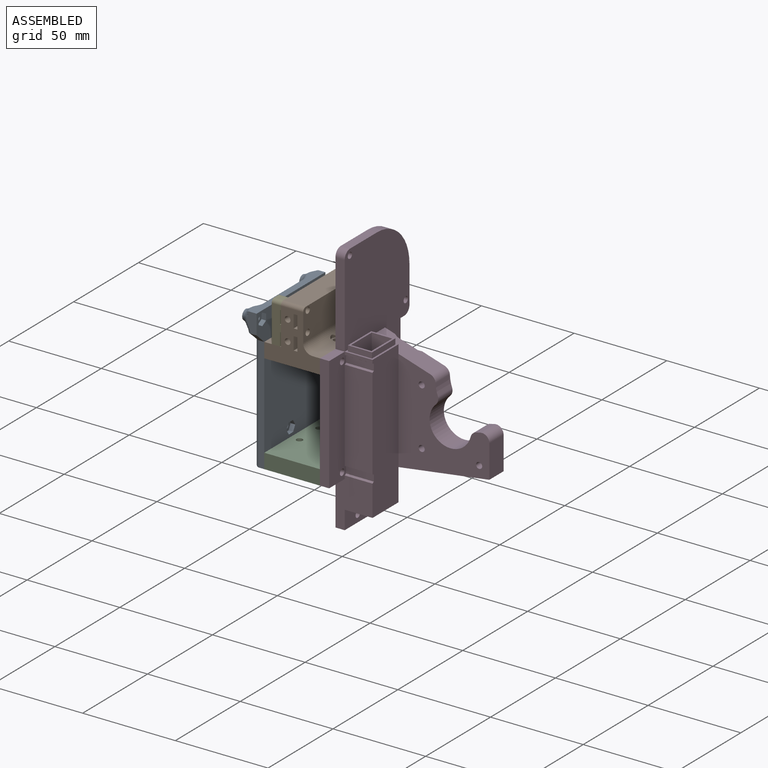
[diagram: assembled view]
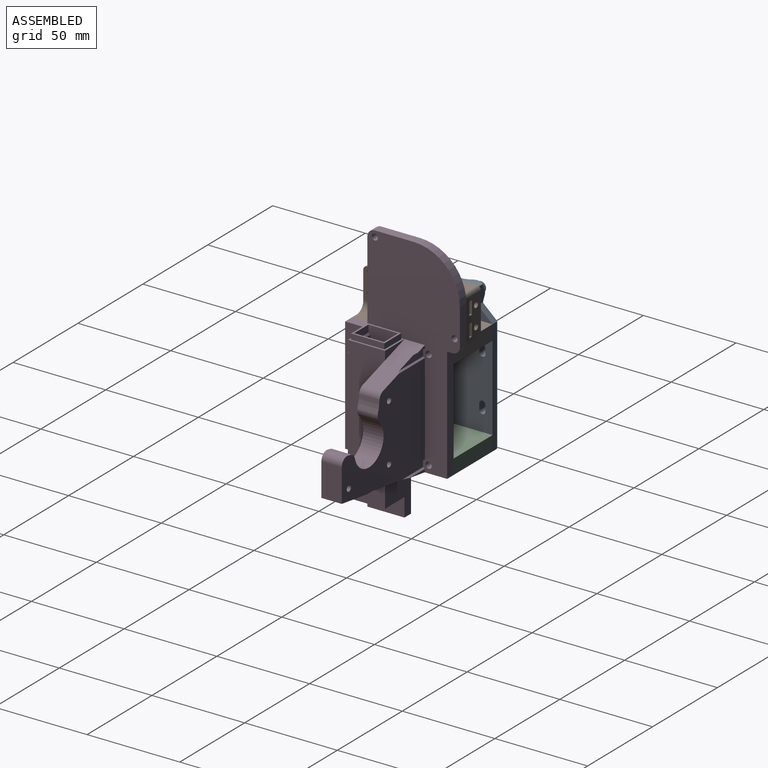
[diagram: assembled view, second angle]
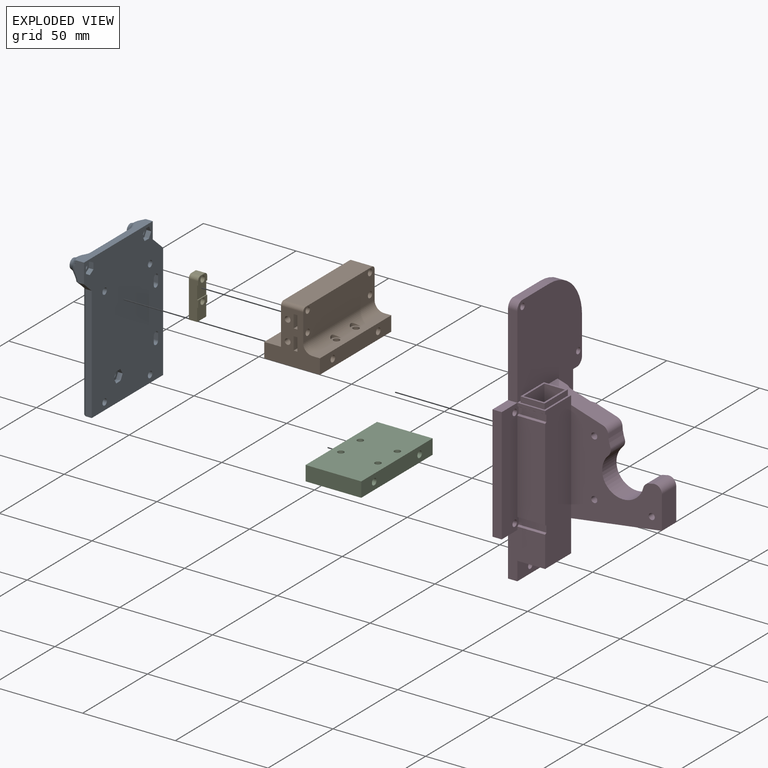
[diagram: exploded view]
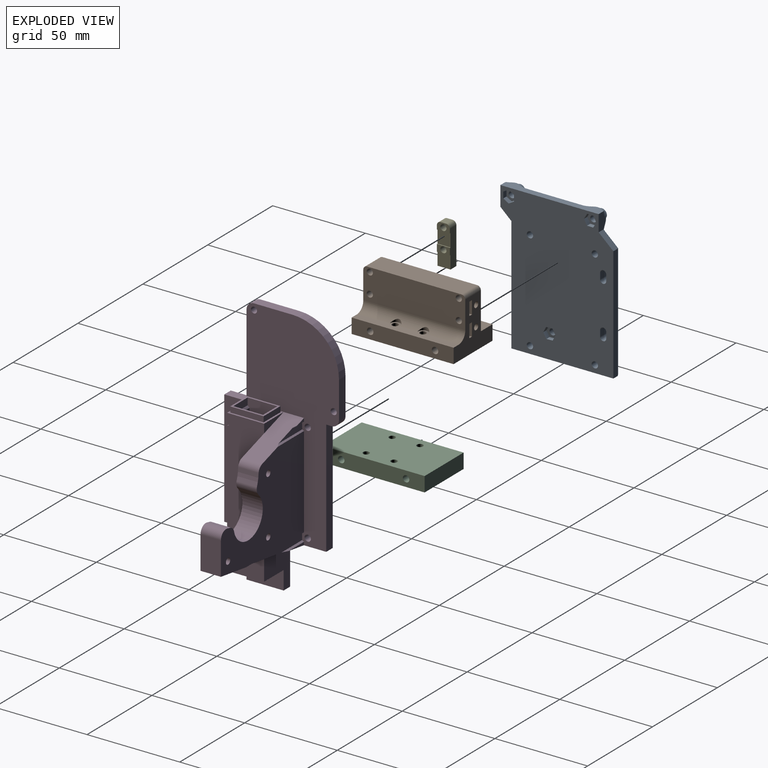
[diagram: exploded view, second angle]
ASSEMBLY  parts=5 mates=4
PART A: 69 faces, bbox 10x68.6x85.7 mm
  f0: plane 78.05x60.95mm, normal (1,0,0), area 4110.5mm2, adj f4,f6,f7,f8,f9,f10,f11,f12
  f1: cylinder r=1.7mm len=3.41mm, axis (-1,0,0), area 26.8mm2, adj f30,f62
  f2: cylinder r=1.71mm len=3.41mm, axis (-1,0,0), area 26.8mm2, adj f27,f55
  f3: cylinder r=1.7mm len=3.4mm, axis (-1,0,0), area 26.7mm2, adj f25,f48
  f4: plane 10.6x5.27mm, normal (0,-1,0), area 45.1mm2, adj f0,f23,f24,f42,f44
  f5: plane 74.05x54.39mm, normal (-1,0,0), area 3316.8mm2, adj f9,f10,f11,f12,f13,f14,f15,f16
  f6: plane 62.05x3mm, normal (0,1,0), area 186.1mm2, adj f0,f8,f21,f39
  f7: plane 62.05x3mm, normal (0,-1,0), area 186.1mm2, adj f0,f8,f24,f36
  f8: plane 55x3mm, normal (0,0,-1), area 165mm2, adj f0,f6,f7,f37
  f9: cylinder r=1.7mm len=5mm, axis (-1,0,0), area 53.4mm2, adj f0,f5
  f10: cylinder r=1.7mm len=5mm, axis (-1,0,0), area 53.4mm2, adj f0,f5
  f11: cylinder r=1.7mm len=5mm, axis (-1,0,0), area 53.4mm2, adj f0,f5
  f12: cylinder r=1.7mm len=5mm, axis (-1,0,0), area 53.4mm2, adj f0,f5
  f13: plane 5x3.3mm, normal (0,1,0), area 16.5mm2, adj f0,f5,f14,f16
  f14: cylinder r=1.65mm len=5mm, axis (-1,0,0), area 25.9mm2, adj f0,f5,f13,f15
  f15: plane 5x3.3mm, normal (0,-1,0), area 16.5mm2, adj f0,f5,f14,f16
  f16: cylinder r=1.65mm len=5mm, axis (-1,0,0), area 25.9mm2, adj f0,f5,f13,f15
  f17: cylinder r=1.65mm len=5mm, axis (-1,0,0), area 25.9mm2, adj f0,f5,f18,f20
  f18: plane 5x3.3mm, normal (0,-1,0), area 16.5mm2, adj f0,f5,f17,f19
  f19: cylinder r=1.65mm len=5mm, axis (-1,0,0), area 25.9mm2, adj f0,f5,f18,f20
  f20: plane 5x3.3mm, normal (0,1,0), area 16.5mm2, adj f0,f5,f17,f19
  f21: plane 7.95x7.14mm, normal (0,0.67,0.74), area 32.1mm2, adj f0,f6,f22,f41,f43
  f22: plane 8.93x5.16mm, normal (0,1,0), area 38.9mm2, adj f0,f21,f23,f43,f45,f47
  f23: plane 53.01x5.28mm, normal (0,0,1), area 185.8mm2, adj f0,f4,f22,f44,f46,f47
  f24: plane 5.95x5.41mm, normal (0,-0.67,-0.74), area 24.7mm2, adj f0,f4,f7,f38,f40,f42
  f25: cylinder r=1.7mm len=4mm, axis (1,0,0), area 42.7mm2, adj f3,f26
  f26: plane 5.4x5.4mm, normal (-1,0,0), area 13.8mm2, adj f25,f33
  f27: plane 3.41x3.41mm, normal (1,0,0), area 0.1mm2, adj f2,f28
  f28: cylinder r=1.7mm len=4mm, axis (1,0,0), area 42.7mm2, adj f27,f29
  f29: plane 5.4x5.4mm, normal (-1,0,0), area 13.8mm2, adj f28,f35
  f30: plane 3.41x3.41mm, normal (1,0,0), area 0mm2, adj f1,f31
  f31: cylinder r=1.7mm len=4mm, axis (1,0,0), area 42.7mm2, adj f30,f32
  f32: plane 5.4x5.4mm, normal (-1,0,0), area 13.8mm2, adj f31,f34
  f33: torus R=7.6mm, axis (-1,0,0), area 122.6mm2, adj f5,f26,f40,f42,f44
  f34: torus R=7.6mm, axis (-1,0,0), area 201.3mm2, adj f5,f32
  f35: torus R=7.6mm, axis (-1,0,0), area 122mm2, adj f5,f29,f43,f45,f47
  f36: cylinder r=2mm len=62.94mm, axis (0,0,1), area 193.2mm2, adj f5,f7,f37,f38
  f37: cylinder r=2mm len=55mm, axis (0,-1,0), area 166.5mm2, adj f5,f8,f36,f39
  f38: cylinder r=2mm len=4.74mm, axis (0,-0.74,0.67), area 13mm2, adj f5,f24,f36,f40
  f39: cylinder r=2mm len=62.05mm, axis (0,0,-1), area 190.4mm2, adj f5,f6,f37,f41
  f40: bspline ~5.24x4.57mm, area 10.9mm2, adj f24,f33,f38,f42
  f41: cylinder r=2mm len=8.61mm, axis (0,-0.74,0.67), area 29.3mm2, adj f5,f21,f39,f43
  f42: bspline ~13.3x3.63mm, area 22.5mm2, adj f4,f24,f33,f40,f44
  f43: bspline ~4.29x4mm, area 3mm2, adj f21,f22,f35,f41,f45
  f44: bspline ~14.95x3.63mm, area 26mm2, adj f4,f23,f33,f42,f46
  f45: bspline ~11.62x3.45mm, area 19.7mm2, adj f22,f35,f43,f47
  f46: cylinder r=2mm len=29.6mm, axis (0,-1,0), area 93mm2, adj f5,f23,f44,f47
  f47: bspline ~14.94x3.63mm, area 26.3mm2, adj f22,f23,f35,f45,f46
  f48: plane 6.7x5.8mm, normal (1,0,0), area 20mm2, adj f3,f49,f50,f51,f52,f53,f54
  f49: plane 2.9x2.5mm, normal (0,-0.5,0.87), area 8.4mm2, adj f0,f48,f50,f54
  f50: plane 3.35x2.5mm, normal (0,-1,0), area 8.4mm2, adj f0,f48,f49,f51
  f51: plane 2.9x2.5mm, normal (0,-0.5,-0.87), area 8.4mm2, adj f0,f48,f50,f52
  f52: plane 2.9x2.5mm, normal (0,0.5,-0.87), area 8.4mm2, adj f0,f48,f51,f53
  f53: plane 3.35x2.5mm, normal (0,1,0), area 8.4mm2, adj f0,f48,f52,f54
  f54: plane 2.9x2.5mm, normal (0,0.5,0.87), area 8.4mm2, adj f0,f48,f49,f53
  f55: plane 6.7x5.85mm, normal (1,0,0), area 20mm2, adj f2,f56,f57,f58,f59,f60,f61
  f56: plane 2.87x2.5mm, normal (0,-0.86,0.51), area 8.4mm2, adj f0,f55,f57,f61
  f57: plane 2.93x2.5mm, normal (0,-0.87,-0.49), area 8.4mm2, adj f0,f55,f56,f58
  f58: plane 3.35x2.5mm, normal (0,-0.02,-1), area 8.4mm2, adj f0,f55,f57,f59
  f59: plane 2.87x2.5mm, normal (0,0.86,-0.51), area 8.4mm2, adj f0,f55,f58,f60
  f60: plane 2.93x2.5mm, normal (0,0.87,0.49), area 8.4mm2, adj f0,f55,f59,f61
  f61: plane 3.35x2.5mm, normal (0,0.02,1), area 8.4mm2, adj f0,f55,f56,f60
  f62: plane 6.69x5.89mm, normal (1,0,0), area 20mm2, adj f1,f63,f64,f65,f66,f67,f68
  f63: plane 2.95x2.5mm, normal (0,-0.88,0.48), area 8.4mm2, adj f0,f62,f64,f68
  f64: plane 2.85x2.5mm, normal (0,-0.85,-0.52), area 8.4mm2, adj f0,f62,f63,f65
  f65: plane 3.35x2.5mm, normal (0,0.03,-1), area 8.4mm2, adj f0,f62,f64,f66
  f66: plane 2.95x2.5mm, normal (0,0.88,-0.48), area 8.4mm2, adj f0,f62,f65,f67
  f67: plane 2.85x2.5mm, normal (0,0.85,0.52), area 8.4mm2, adj f0,f62,f66,f68
  f68: plane 3.35x2.5mm, normal (0,-0.03,1), area 8.4mm2, adj f0,f62,f63,f67
PART B: 124 faces, bbox 30x55x30 mm
  f0: cylinder r=1.65mm len=8mm, axis (0,0,1), area 82.9mm2, adj f19,f20
  f1: cylinder r=1.65mm len=8mm, axis (0,0,1), area 82.9mm2, adj f19,f20
  f2: cylinder r=5mm len=55mm, axis (0,1,0), area 394.1mm2, adj f14,f15,f19,f25,f122,f123
  f3: plane 55x22mm, normal (-1,0,0), area 516.3mm2, adj f5,f7,f9,f11,f14,f15,f16,f26
  f4: cylinder r=1.55mm len=4.6mm, axis (0,-1,0), area 44.8mm2, adj f14,f55
  f5: plane 7x6.85mm, normal (0,1,0), area 21.8mm2, adj f3,f16,f32,f33,f56,f57,f58,f59
  f6: cylinder r=1.55mm len=4.6mm, axis (0,-1,0), area 44.8mm2, adj f14,f48
  f7: plane 7x6.85mm, normal (0,1,0), area 21.8mm2, adj f3,f27,f29,f30,f49,f50,f51,f52
  f8: cylinder r=1.55mm len=4.6mm, axis (0,-1,0), area 44.8mm2, adj f15,f41
  f9: plane 7x6.85mm, normal (0,-1,0), area 21.8mm2, adj f3,f13,f16,f32,f42,f43,f44,f45
  f10: cylinder r=1.55mm len=4.6mm, axis (0,-1,0), area 44.8mm2, adj f15,f34
  f11: plane 7x6.85mm, normal (0,-1,0), area 18.8mm2, adj f3,f12,f27,f29,f35,f36,f37,f38
  f12: plane 7x7mm, normal (1,0,0), area 49mm2, adj f11,f15,f27,f29
  f13: plane 7x7mm, normal (1,0,0), area 49mm2, adj f9,f15,f16,f32
  f14: plane 30x28mm, normal (0,-1,0), area 442.3mm2, adj f2,f3,f4,f6,f16,f17,f18,f19
  f15: plane 30x28mm, normal (0,1,0), area 442.3mm2, adj f2,f3,f8,f10,f12,f13,f16,f17
  f16: plane 55x17.85mm, normal (0,0,1), area 871.7mm2, adj f3,f5,f9,f13,f14,f15,f18,f21
  f17: plane 55x8mm, normal (1,0,0), area 420.8mm2, adj f14,f15,f19,f20,f23,f24
  f18: plane 55x8mm, normal (-1,0,0), area 420.8mm2, adj f14,f15,f16,f20,f23,f24
  f19: plane 55x7.75mm, normal (0,0,1), area 237.4mm2, adj f0,f1,f2,f14,f15,f17,f122,f123
  f20: plane 55x30mm, normal (0,0,-1), area 1615.8mm2, adj f0,f1,f14,f15,f17,f18,f21,f22
  f21: cylinder r=1.65mm len=8mm, axis (0,0,1), area 82.9mm2, adj f16,f20
  f22: cylinder r=1.65mm len=8mm, axis (0,0,1), area 82.9mm2, adj f16,f20
  f23: cylinder r=1.75mm len=30mm, axis (1,0,0), area 329.9mm2, adj f17,f18
  f24: cylinder r=1.75mm len=30mm, axis (1,0,0), area 329.9mm2, adj f17,f18
  f25: plane 55x17mm, normal (1,0,0), area 899.1mm2, adj f2,f14,f15,f26,f116,f117,f118,f119
  f26: plane 51x12mm, normal (0,0,1), area 612mm2, adj f3,f25,f120,f121
  f27: plane 55x8.85mm, normal (0,0,1), area 390.9mm2, adj f3,f7,f11,f12,f14,f15,f28,f30
  f28: plane 55x7mm, normal (-1,0,0), area 385mm2, adj f14,f15,f27,f29
  f29: plane 55x8.85mm, normal (0,0,-1), area 390.9mm2, adj f3,f7,f11,f12,f14,f15,f28,f30
  f30: plane 7x7mm, normal (1,0,0), area 49mm2, adj f7,f14,f27,f29
  f31: plane 55x7mm, normal (-1,0,0), area 385mm2, adj f14,f15,f16,f32
  f32: plane 55x8.85mm, normal (0,0,-1), area 390.9mm2, adj f3,f5,f9,f13,f14,f15,f31,f33
  f33: plane 7x7mm, normal (1,0,0), area 49mm2, adj f5,f14,f16,f32
  f34: plane 6.7x5.83mm, normal (0,-1,0), area 21.6mm2, adj f10,f35,f36,f37,f38,f39,f40
  f35: plane 2.89x2.4mm, normal (-0.51,0,0.86), area 8mm2, adj f11,f34,f36,f40
  f36: plane 3.35x2.4mm, normal (-1,0,-0.01), area 8mm2, adj f11,f34,f35,f37
  f37: plane 2.91x2.4mm, normal (-0.49,0,-0.87), area 8mm2, adj f11,f34,f36,f38
  f38: plane 2.89x2.4mm, normal (0.51,0,-0.86), area 8mm2, adj f11,f34,f37,f39
  f39: plane 3.35x2.4mm, normal (1,0,0.01), area 8mm2, adj f11,f34,f38,f40
  f40: plane 2.91x2.4mm, normal (0.49,0,0.87), area 8mm2, adj f11,f34,f35,f39
  f41: plane 6.35x5.56mm, normal (0,-1,0), area 18.6mm2, adj f8,f42,f43,f44,f45,f46,f47
  f42: plane 2.78x2.4mm, normal (-0.48,0,0.88), area 7.6mm2, adj f9,f41,f43,f47
  f43: plane 3.18x2.4mm, normal (-1,0,0.02), area 7.6mm2, adj f9,f41,f42,f44
  f44: plane 2.72x2.4mm, normal (-0.52,0,-0.86), area 7.6mm2, adj f9,f41,f43,f45
  f45: plane 2.78x2.4mm, normal (0.48,0,-0.88), area 7.6mm2, adj f9,f41,f44,f46
  f46: plane 3.18x2.4mm, normal (1,0,-0.02), area 7.6mm2, adj f9,f41,f45,f47
  f47: plane 2.72x2.4mm, normal (0.52,0,0.86), area 7.6mm2, adj f9,f41,f42,f46
  f48: plane 6.35x5.53mm, normal (0,1,0), area 18.6mm2, adj f6,f49,f50,f51,f52,f53,f54
  f49: plane 2.76x2.4mm, normal (0.49,0,0.87), area 7.6mm2, adj f7,f48,f50,f54
  f50: plane 3.18x2.4mm, normal (1,0,0.01), area 7.6mm2, adj f7,f48,f49,f51
  f51: plane 2.74x2.4mm, normal (0.51,0,-0.86), area 7.6mm2, adj f7,f48,f50,f52
  f52: plane 2.76x2.4mm, normal (-0.49,0,-0.87), area 7.6mm2, adj f7,f48,f51,f53
  f53: plane 3.18x2.4mm, normal (-1,0,-0.01), area 7.6mm2, adj f7,f48,f52,f54
  f54: plane 2.74x2.4mm, normal (-0.51,0,0.86), area 7.6mm2, adj f7,f48,f49,f53
  f55: plane 6.35x5.5mm, normal (0,1,0), area 18.6mm2, adj f4,f56,f57,f58,f59,f60,f61
  f56: plane 3.18x2.4mm, normal (1,0,0), area 7.6mm2, adj f5,f55,f57,f61
  f57: plane 2.75x2.4mm, normal (0.5,0,-0.87), area 7.6mm2, adj f5,f55,f56,f58
  f58: plane 2.75x2.4mm, normal (-0.5,0,-0.87), area 7.6mm2, adj f5,f55,f57,f59
  f59: plane 3.18x2.4mm, normal (-1,0,0), area 7.6mm2, adj f5,f55,f58,f60
  f60: plane 2.75x2.4mm, normal (-0.5,0,0.87), area 7.6mm2, adj f5,f55,f59,f61
  f61: plane 2.75x2.4mm, normal (0.5,0,0.87), area 7.6mm2, adj f5,f55,f56,f60
  f62: plane 1x0.5mm, normal (0,0,-1), area 0.5mm2, adj f3,f63,f65,f66
  f63: plane 7.01x0.5mm, normal (0,-1,0), area 3.5mm2, adj f3,f62,f64,f66
  f64: plane 1x0.5mm, normal (0,0,1), area 0.5mm2, adj f3,f63,f65,f66
  f65: plane 7.01x0.5mm, normal (0,1,0), area 3.5mm2, adj f3,f62,f64,f66
  f66: plane 7.01x1mm, normal (-1,0,0), area 7mm2, adj f62,f63,f64,f65
  f67: plane 6.94x0.5mm, normal (0,1,0), area 3.5mm2, adj f3,f16,f68,f70
  f68: plane 1x0.5mm, normal (0,0,-1), area 0.5mm2, adj f3,f67,f69,f70
  f69: plane 6.94x0.5mm, normal (0,-1,0), area 3.5mm2, adj f3,f16,f68,f70
  f70: plane 6.94x1mm, normal (-1,0,0), area 6.9mm2, adj f16,f67,f68,f69
  f71: plane 6.94x0.5mm, normal (0,1,0), area 3.5mm2, adj f3,f16,f72,f74
  f72: plane 1x0.5mm, normal (0,0,-1), area 0.5mm2, adj f3,f71,f73,f74
  f73: plane 6.94x0.5mm, normal (0,-1,0), area 3.5mm2, adj f3,f16,f72,f74
  f74: plane 6.94x1mm, normal (-1,0,0), area 6.9mm2, adj f16,f71,f72,f73
  f75: plane 6.96x0.5mm, normal (0,1,0), area 3.5mm2, adj f3,f16,f76,f78
  f76: plane 1x0.5mm, normal (0,0,-1), area 0.5mm2, adj f3,f75,f77,f78
  f77: plane 6.96x0.5mm, normal (0,-1,0), area 3.5mm2, adj f3,f16,f76,f78
  f78: plane 6.96x1mm, normal (-1,0,0), area 7mm2, adj f16,f75,f76,f77
  f79: plane 1x0.5mm, normal (0,0,-1), area 0.5mm2, adj f3,f80,f82,f83
  f80: plane 7.01x0.5mm, normal (0,-1,0), area 3.5mm2, adj f3,f79,f81,f83
  f81: plane 1x0.5mm, normal (0,0,1), area 0.5mm2, adj f3,f80,f82,f83
  f82: plane 7.01x0.5mm, normal (0,1,0), area 3.5mm2, adj f3,f79,f81,f83
  f83: plane 7.01x1mm, normal (-1,0,0), area 7mm2, adj f79,f80,f81,f82
  f84: plane 1x0.5mm, normal (0,0,-1), area 0.5mm2, adj f3,f85,f87,f88
  f85: plane 7.01x0.5mm, normal (0,-1,0), area 3.5mm2, adj f3,f84,f86,f88
  f86: plane 1x0.5mm, normal (0,0,1), area 0.5mm2, adj f3,f85,f87,f88
  f87: plane 7.01x0.5mm, normal (0,1,0), area 3.5mm2, adj f3,f84,f86,f88
  f88: plane 7.01x1mm, normal (-1,0,0), area 7mm2, adj f84,f85,f86,f87
  f89: plane 1x0.5mm, normal (0,0,-1), area 0.5mm2, adj f3,f90,f91,f92
  f90: plane 6.94x0.5mm, normal (0,-1,0), area 3.5mm2, adj f3,f16,f89,f92
  f91: plane 6.94x0.5mm, normal (0,1,0), area 3.5mm2, adj f3,f16,f89,f92
  f92: plane 6.94x1mm, normal (-1,0,0), area 6.9mm2, adj f16,f89,f90,f91
  f93: plane 1x0.5mm, normal (0,0,-1), area 0.5mm2, adj f3,f94,f95,f96
  f94: plane 6.94x0.5mm, normal (0,-1,0), area 3.5mm2, adj f3,f16,f93,f96
  f95: plane 6.94x0.5mm, normal (0,1,0), area 3.5mm2, adj f3,f16,f93,f96
  f96: plane 6.94x1mm, normal (-1,0,0), area 6.9mm2, adj f16,f93,f94,f95
  f97: plane 1x0.5mm, normal (0,0,-1), area 0.5mm2, adj f3,f98,f99,f100
  f98: plane 6.94x0.5mm, normal (0,-1,0), area 3.5mm2, adj f3,f16,f97,f100
  f99: plane 6.94x0.5mm, normal (0,1,0), area 3.5mm2, adj f3,f16,f97,f100
  f100: plane 6.94x1mm, normal (-1,0,0), area 6.9mm2, adj f16,f97,f98,f99
  f101: plane 7.04x0.5mm, normal (0,1,0), area 3.5mm2, adj f3,f102,f104,f105
  f102: plane 1x0.5mm, normal (0,0,-1), area 0.5mm2, adj f3,f101,f103,f105
  f103: plane 7.04x0.5mm, normal (0,-1,0), area 3.5mm2, adj f3,f102,f104,f105
  f104: plane 1x0.5mm, normal (0,0,1), area 0.5mm2, adj f3,f101,f103,f105
  f105: plane 7.04x1mm, normal (-1,0,0), area 7mm2, adj f101,f102,f103,f104
  f106: plane 7.04x0.5mm, normal (0,1,0), area 3.5mm2, adj f3,f107,f109,f110
  f107: plane 1x0.5mm, normal (0,0,-1), area 0.5mm2, adj f3,f106,f108,f110
  f108: plane 7.04x0.5mm, normal (0,-1,0), area 3.5mm2, adj f3,f107,f109,f110
  f109: plane 1x0.5mm, normal (0,0,1), area 0.5mm2, adj f3,f106,f108,f110
  f110: plane 7.04x1mm, normal (-1,0,0), area 7mm2, adj f106,f107,f108,f109
  f111: plane 7.04x0.5mm, normal (0,1,0), area 3.5mm2, adj f3,f112,f114,f115
  f112: plane 1x0.5mm, normal (0,0,-1), area 0.5mm2, adj f3,f111,f113,f115
  f113: plane 7.04x0.5mm, normal (0,-1,0), area 3.5mm2, adj f3,f112,f114,f115
  f114: plane 1x0.5mm, normal (0,0,1), area 0.5mm2, adj f3,f111,f113,f115
  f115: plane 7.04x1mm, normal (-1,0,0), area 7mm2, adj f111,f112,f113,f114
  f116: cylinder r=1.65mm len=12mm, axis (-1,0,0), area 124.4mm2, adj f3,f25
  f117: cylinder r=1.65mm len=12mm, axis (-1,0,0), area 124.4mm2, adj f3,f25
  f118: cylinder r=1.65mm len=12mm, axis (-1,0,0), area 124.4mm2, adj f3,f25
  f119: cylinder r=1.65mm len=12mm, axis (-1,0,0), area 124.4mm2, adj f3,f25
  f120: cylinder r=2mm len=12mm, axis (1,0,0), area 37.7mm2, adj f3,f15,f25,f26
  f121: cylinder r=2mm len=12mm, axis (-1,0,0), area 37.7mm2, adj f3,f14,f25,f26
  f122: cylinder r=2.75mm len=5.5mm, axis (0,0,-1), area 8.2mm2, adj f2,f19
  f123: cylinder r=2.75mm len=5.5mm, axis (0,0,-1), area 8.2mm2, adj f2,f19
PART C: 12 faces, bbox 30x55x8 mm
  f0: plane 30x8mm, normal (0,-1,0), area 240mm2, adj f1,f3,f4,f5
  f1: plane 55x8mm, normal (1,0,0), area 420.8mm2, adj f0,f2,f4,f5,f10,f11
  f2: plane 30x8mm, normal (0,1,0), area 240mm2, adj f1,f3,f4,f5
  f3: plane 55x8mm, normal (-1,0,0), area 420.8mm2, adj f0,f2,f4,f5,f10,f11
  f4: plane 55x30mm, normal (0,0,-1), area 1615.8mm2, adj f0,f1,f2,f3,f6,f7,f8,f9
  f5: plane 55x30mm, normal (0,0,1), area 1615.8mm2, adj f0,f1,f2,f3,f6,f7,f8,f9
  f6: cylinder r=1.65mm len=8mm, axis (0,0,-1), area 82.9mm2, adj f4,f5
  f7: cylinder r=1.65mm len=8mm, axis (0,0,-1), area 82.9mm2, adj f4,f5
  f8: cylinder r=1.65mm len=8mm, axis (0,0,-1), area 82.9mm2, adj f4,f5
  f9: cylinder r=1.65mm len=8mm, axis (0,0,-1), area 82.9mm2, adj f4,f5
  f10: cylinder r=1.75mm len=30mm, axis (1,0,0), area 329.9mm2, adj f1,f3
  f11: cylinder r=1.75mm len=30mm, axis (1,0,0), area 329.9mm2, adj f1,f3
PART D: 74 faces, bbox 69x61.9x135.7 mm
  f0: plane 11x3.77mm, normal (0,1,0), area 41.4mm2, adj f1,f14,f45,f73
  f1: plane 80.05x16mm, normal (-1,0,0), area 1219mm2, adj f0,f14,f43,f44,f46,f71,f72,f73
  f2: plane 49.42x15mm, normal (0,-1,0), area 741.3mm2, adj f5,f17,f65,f68
  f3: plane 15x1.69mm, normal (0,-1,0), area 25.4mm2, adj f5,f11,f17,f69
  f4: plane 26.7x20mm, normal (0,-1,0), area 375.5mm2, adj f5,f12,f17,f21,f46,f47,f48,f66
  f5: plane 77.05x20mm, normal (1,0,0), area 1532.9mm2, adj f2,f3,f4,f11,f18,f37,f38,f46
  f6: plane 5.43x1.7mm, normal (0,1,0), area 4.6mm2, adj f9,f16,f63
  f7: plane 64x49.42mm, normal (0,1,0), area 2120.7mm2, adj f9,f10,f16,f26,f27,f28,f29,f30
  f8: plane 11.68x1.64mm, normal (0,1,0), area 9.6mm2, adj f10,f16,f59
  f9: plane 32.21x11mm, normal (0.3,0,0.95), area 357.8mm2, adj f6,f7,f16,f18,f34,f37,f62,f63
  f10: plane 64x11mm, normal (0.14,0,-0.99), area 681.9mm2, adj f7,f8,f16,f18,f26,f38,f59,f60
  f11: plane 20x15mm, normal (0,0,1), area 66mm2, adj f3,f5,f16,f37,f39,f40,f41,f42
  f12: plane 12x5mm, normal (0,0,-1), area 60mm2, adj f4,f17,f20,f21
  f13: plane 23x5mm, normal (0,0,-1), area 115mm2, adj f16,f19,f21,f38
  f14: plane 18x13mm, normal (0,0,1), area 58mm2, adj f0,f1,f39,f40,f41,f42,f44,f45
  f15: plane 12x5mm, normal (0,0,1), area 60mm2, adj f17,f20,f21,f50
  f16: plane 110.74x49.88mm, normal (1,0,0), area 3005.4mm2, adj f6,f7,f8,f9,f10,f11,f13,f19
  f17: plane 62.05x13.03mm, normal (1,0,0), area 734.5mm2, adj f2,f3,f4,f12,f15,f20,f22,f24
  f18: plane 55.19x49mm, normal (0,-1,0), area 1444.9mm2, adj f5,f9,f10,f26,f27,f28,f29,f30
  f19: plane 62.05x5mm, normal (0,1,0), area 310.3mm2, adj f13,f16,f21,f51
  f20: plane 62.05x5mm, normal (0,-1,0), area 310.3mm2, adj f12,f15,f17,f21
  f21: plane 135.74x61.88mm, normal (-1,0,0), area 6138.2mm2, adj f4,f12,f13,f15,f19,f20,f22,f23
  f22: cylinder r=1.7mm len=5mm, axis (1,0,0), area 53.4mm2, adj f17,f21
  f23: cylinder r=1.7mm len=5mm, axis (1,0,0), area 53.4mm2, adj f16,f21
  f24: cylinder r=1.7mm len=5mm, axis (1,0,0), area 53.4mm2, adj f17,f21
  f25: cylinder r=1.7mm len=5mm, axis (1,0,0), area 53.4mm2, adj f16,f21
  f26: plane 17.8x11mm, normal (1,0,0), area 195.8mm2, adj f7,f10,f18,f33
  f27: cylinder r=1.65mm len=11mm, axis (0,1,0), area 114mm2, adj f7,f18
  f28: cylinder r=1.65mm len=11mm, axis (0,1,0), area 114mm2, adj f7,f18
  f29: cylinder r=1.65mm len=11mm, axis (0,1,0), area 114mm2, adj f7,f18
  f30: cylinder r=11.25mm len=22.17mm, axis (0,1,0), area 458.3mm2, adj f7,f18,f35,f36
  f31: cylinder r=19mm len=11mm, axis (0,-1,0), area 66mm2, adj f7,f18,f34,f36
  f32: cylinder r=19mm len=11mm, axis (0,-1,0), area 20.5mm2, adj f7,f18,f33,f35
  f33: cylinder r=4mm len=11mm, axis (0,-1,0), area 80.7mm2, adj f7,f18,f26,f32
  f34: cylinder r=4mm len=11mm, axis (0,-1,0), area 54mm2, adj f7,f9,f18,f31
  f35: cylinder r=4mm len=11mm, axis (0,1,0), area 51.1mm2, adj f7,f18,f30,f32
  f36: cylinder r=4mm len=11mm, axis (0,-1,0), area 51.1mm2, adj f7,f18,f30,f31
  f37: plane 15x4.7mm, normal (0,1,0), area 35.3mm2, adj f5,f9,f11
  f38: plane 27.16x20mm, normal (0,1,0), area 366.6mm2, adj f5,f10,f13,f16,f21,f46,f47,f48
  f39: plane 13x3mm, normal (0,-1,0), area 39mm2, adj f11,f14,f40,f42
  f40: plane 18x3mm, normal (1,0,0), area 54mm2, adj f11,f14,f39,f41
  f41: plane 13x3mm, normal (0,1,0), area 39mm2, adj f11,f14,f40,f42
  f42: plane 18x3mm, normal (-1,0,0), area 54mm2, adj f11,f14,f39,f41
  f43: plane 13.49x11mm, normal (0,1,0), area 148.3mm2, adj f1,f45,f46,f72
  f44: plane 80.05x11mm, normal (0,-1,0), area 880.6mm2, adj f1,f14,f45,f46
  f45: plane 80.05x16mm, normal (1,0,0), area 1219mm2, adj f0,f14,f43,f44,f46,f71,f72,f73
  f46: plane 20x15mm, normal (0,0,-1), area 124mm2, adj f1,f4,f5,f38,f43,f44,f45,f47
  f47: plane 20x10mm, normal (1,0,0), area 191.4mm2, adj f4,f38,f46,f48,f49
  f48: plane 20x5mm, normal (0,0,-1), area 100mm2, adj f4,f21,f38,f47
  f49: cylinder r=1.65mm len=5mm, axis (1,0,0), area 51.8mm2, adj f21,f47
  f50: plane 44.69x5mm, normal (0,-1,0), area 223.4mm2, adj f15,f16,f21,f58
  f51: plane 5x2.88mm, normal (0,0,-1), area 14.4mm2, adj f16,f19,f21,f57
  f52: plane 19.69x5mm, normal (0,1,0), area 98.4mm2, adj f16,f21,f56,f57
  f53: cylinder r=1.65mm len=5mm, axis (1,0,0), area 51.8mm2, adj f16,f21
  f54: plane 20.88x5mm, normal (0,0,1), area 104.4mm2, adj f16,f21,f56,f58
  f55: cylinder r=1.65mm len=5mm, axis (1,0,0), area 51.8mm2, adj f16,f21
  f56: cylinder r=25mm len=25mm, axis (-1,0,0), area 196.3mm2, adj f16,f21,f52,f54
  f57: cylinder r=4mm len=5mm, axis (1,0,0), area 31.4mm2, adj f16,f21,f51,f52
  f58: cylinder r=4mm len=5mm, axis (1,0,0), area 31.4mm2, adj f16,f21,f50,f54
  f59: plane 15.83x1.01mm, normal (0,0.5,0.86), area 16mm2, adj f8,f10,f16,f61
  f60: plane 44.53x1mm, normal (0,0.5,-0.87), area 48.7mm2, adj f7,f10,f16,f61
  f61: plane 40.47x3.46mm, normal (0,1,0), area 97.5mm2, adj f10,f16,f59,f60
  f62: plane 18.44x3.46mm, normal (0,1,0.02), area 44.7mm2, adj f9,f16,f63,f64
  f63: plane 7.38x1.03mm, normal (0,0.51,-0.86), area 7.7mm2, adj f6,f9,f16,f62
  f64: plane 20.17x0.97mm, normal (0,0.49,0.87), area 21.5mm2, adj f7,f9,f16,f62
  f65: plane 15x0.97mm, normal (0,-0.49,-0.87), area 16.7mm2, adj f2,f5,f17,f67
  f66: plane 15x1.03mm, normal (0,-0.51,0.86), area 17.9mm2, adj f4,f5,f17,f67
  f67: plane 15x3.46mm, normal (0,-1,-0.02), area 52mm2, adj f5,f17,f65,f66
  f68: plane 15x0.99mm, normal (0,-0.5,0.87), area 17.2mm2, adj f2,f5,f17,f70
  f69: plane 15x1.01mm, normal (0,-0.5,-0.86), area 17.5mm2, adj f3,f5,f17,f70
  f70: plane 15x3.46mm, normal (0,-1,0), area 52mm2, adj f5,f17,f68,f69
  f71: plane 60.8x11mm, normal (0,1,0), area 668.8mm2, adj f1,f45,f72,f73
  f72: plane 11x1mm, normal (0,0.71,-0.71), area 15.6mm2, adj f1,f43,f45,f71
  f73: plane 11x1mm, normal (0,0.71,0.71), area 15.6mm2, adj f0,f1,f45,f71
PART E: 16 faces, bbox 5x7x22 mm
  f0: plane 7x3.73mm, normal (1,0,0), area 17.6mm2, adj f2,f3,f8,f10,f12
  f1: plane 7x4.17mm, normal (1,0,0), area 18.9mm2, adj f2,f3,f5,f7,f13,f14,f15
  f2: plane 20x5mm, normal (0,-1,0), area 93mm2, adj f0,f1,f4,f6,f7,f8,f9,f10
  f3: plane 20x5mm, normal (0,1,0), area 93mm2, adj f0,f1,f4,f6,f7,f8,f9,f10
  f4: plane 7x4.5mm, normal (0,0,-1), area 31.5mm2, adj f2,f3,f6,f11
  f5: plane 5x3mm, normal (0,0,1), area 15mm2, adj f1,f6,f14,f15
  f6: plane 22x7mm, normal (-1,0,0), area 135.2mm2, adj f2,f3,f4,f5,f12,f13,f14,f15
  f7: plane 7x0.5mm, normal (0,0,-1), area 3.5mm2, adj f1,f2,f3,f9
  f8: plane 7x0.5mm, normal (0,0,1), area 3.5mm2, adj f0,f2,f3,f9
  f9: plane 7.06x7mm, normal (1,0,0), area 49.4mm2, adj f2,f3,f7,f8
  f10: plane 7x0.5mm, normal (0,0,-1), area 3.5mm2, adj f0,f2,f3,f11
  f11: plane 7.04x7mm, normal (1,0,0), area 49.2mm2, adj f2,f3,f4,f10
  f12: cylinder r=1.65mm len=5mm, axis (-1,0,0), area 51.8mm2, adj f0,f6
  f13: cylinder r=1.65mm len=5mm, axis (-1,0,0), area 51.8mm2, adj f1,f6
  f14: cylinder r=2mm len=5mm, axis (-1,0,0), area 15.7mm2, adj f1,f2,f5,f6
  f15: cylinder r=2mm len=5mm, axis (-1,0,0), area 15.7mm2, adj f1,f3,f5,f6
PLACE A t=(18.6,-66.29,8.61)mm
PLACE B t=(18.6,-66.29,8.61)mm
PLACE C t=(18.6,-66.29,8.56)mm
PLACE D t=(18.6,-66.29,8.61)mm
PLACE E t=(18.6,-66.29,8.61)mm
MATE fastened B.f24 <-> D.f22  axis (1,0,0) through (33.6,-83.79,12.61)mm
MATE fastened E.f13 <-> B.f116  axis (-1,0,0) through (12.6,-90.29,36.31)mm
MATE fastened A.f11 <-> C.f11  axis (1,0,0) through (3.6,-83.79,-41.44)mm
MATE fastened A.f9 <-> B.f24  axis (-1,0,0) through (3.6,-83.79,12.61)mm
